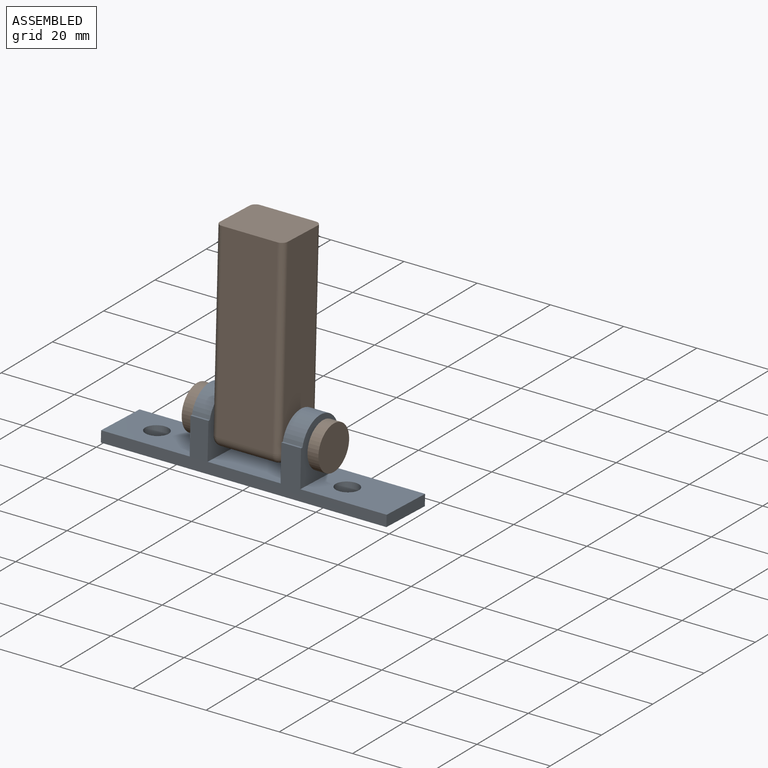
[diagram: assembled view]
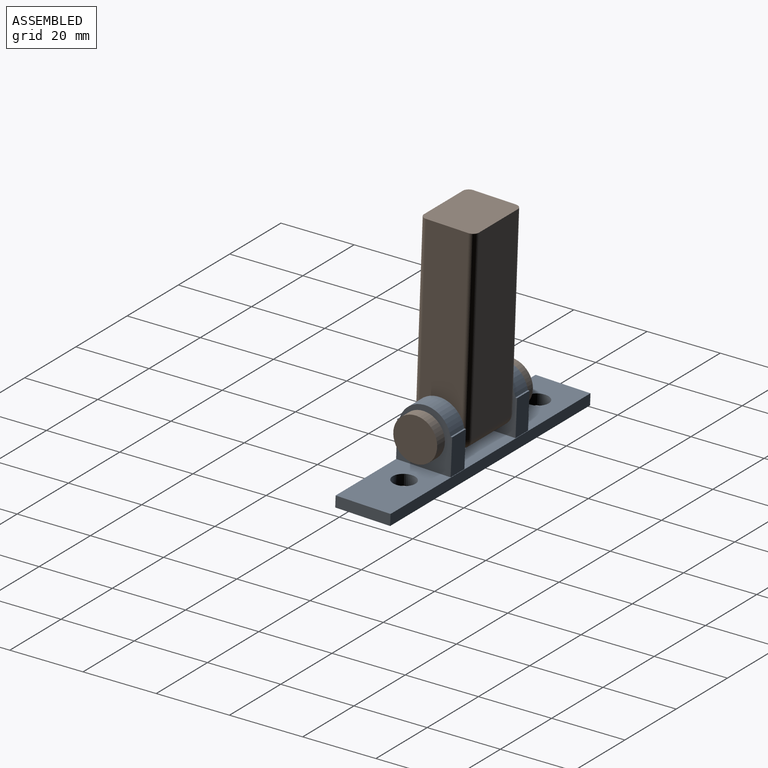
[diagram: assembled view, second angle]
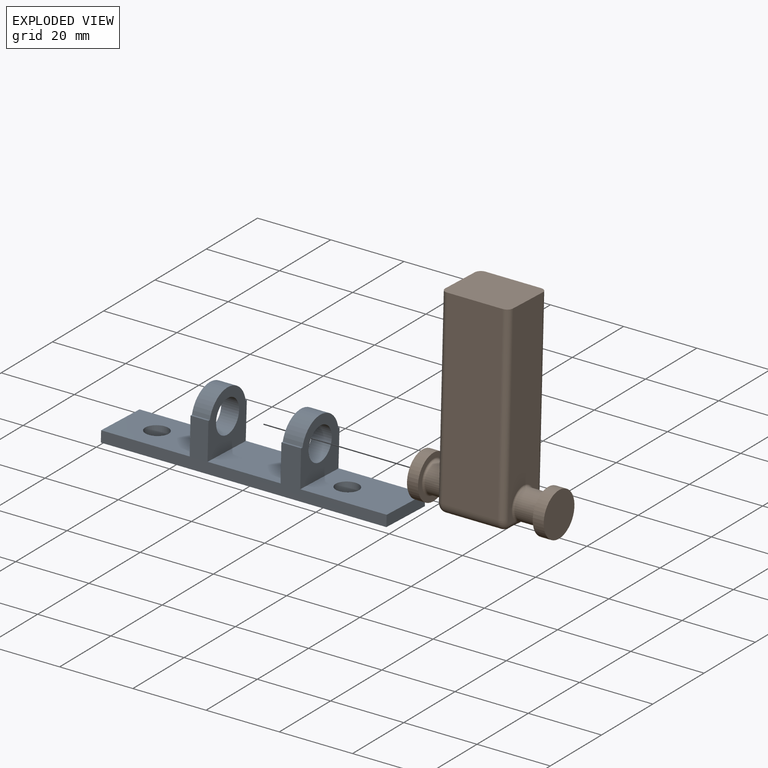
[diagram: exploded view]
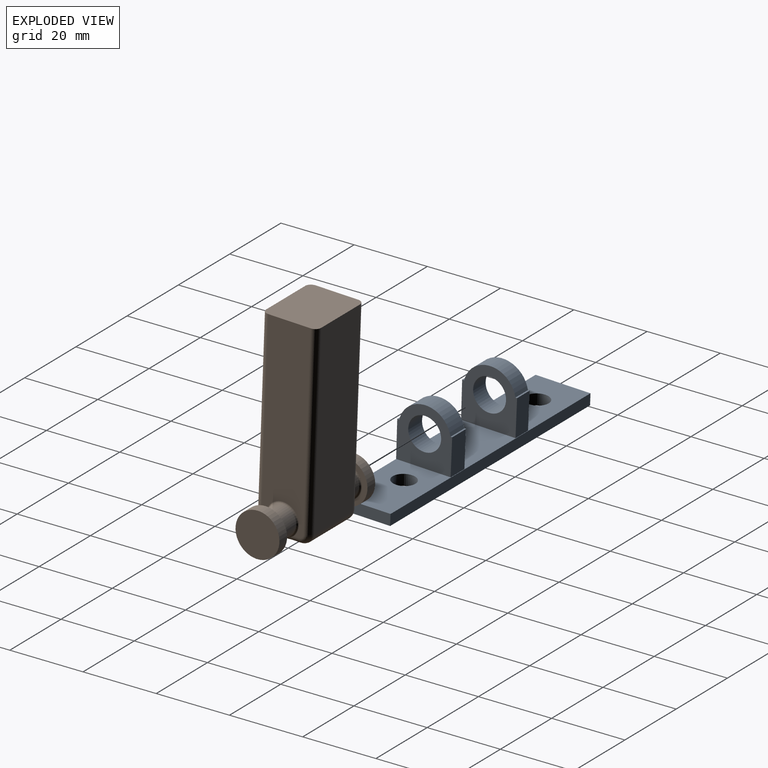
[diagram: exploded view, second angle]
ASSEMBLY  parts=2 mates=2
PART A: 24 faces, bbox 78x15.1x18.7 mm
  f0: cylinder r=7.15mm len=14.01mm, axis (-1,0,0), area 95.3mm2, adj f13,f14,f18,f22
  f1: cylinder r=4.5mm len=9mm, axis (-1,0,0), area 138mm2, adj f13,f14
  f2: plane 78x15.01mm, normal (0,0,1), area 956.8mm2, adj f3,f4,f5,f6,f7,f8,f12,f13
  f3: plane 78.02x3.02mm, normal (0,-1,0), area 234mm2, adj f2,f4,f8,f9,f17,f19
  f4: plane 15x3mm, normal (1,0,0), area 45mm2, adj f2,f3,f5,f9
  f5: plane 78x3mm, normal (0,1,0), area 234mm2, adj f2,f4,f8,f9
  f6: cylinder r=3.1mm len=6.2mm, axis (0,0,-1), area 58.4mm2, adj f2,f9
  f7: cylinder r=3.1mm len=6.2mm, axis (0,0,-1), area 58.4mm2, adj f2,f9
  f8: plane 15x3mm, normal (-1,0,0), area 45mm2, adj f2,f3,f5,f9
  f9: plane 78x15mm, normal (0,0,-1), area 1109.6mm2, adj f3,f4,f5,f6,f7,f8
  f10: cylinder r=7.15mm len=14.01mm, axis (-1,0,0), area 105.1mm2, adj f12,f15,f16,f20
  f11: cylinder r=4.5mm len=9mm, axis (-1,0,0), area 152.1mm2, adj f12,f15
  f12: plane 15.7x15.02mm, normal (1,0,0), area 145.6mm2, adj f2,f10,f11,f16,f17,f20,f21
  f13: plane 15.7x15.02mm, normal (-1,0,0), area 145.6mm2, adj f0,f1,f2,f18,f19,f22,f23
  f14: plane 15.7x15.02mm, normal (1,0,0), area 145.5mm2, adj f0,f1,f2,f18,f19,f22,f23
  f15: plane 15.7x15.02mm, normal (-1,0,0), area 145.5mm2, adj f2,f10,f11,f16,f17,f20,f21
  f16: plane 5.38x0.55mm, normal (0,-0.01,1), area 3mm2, adj f10,f12,f15,f17
  f17: plane 10.02x5.41mm, normal (0,-1,-0.01), area 53.8mm2, adj f3,f12,f15,f16
  f18: plane 4.88x0.55mm, normal (0,-0.01,1), area 2.7mm2, adj f0,f13,f14,f19
  f19: plane 10.02x4.9mm, normal (0,-1,-0.01), area 48.8mm2, adj f3,f13,f14,f18
  f20: plane 5.38x0.46mm, normal (0,0.01,1), area 2.5mm2, adj f10,f12,f15,f21
  f21: plane 10x5.38mm, normal (0,1,-0.01), area 53.8mm2, adj f2,f12,f15,f20
  f22: plane 4.88x0.46mm, normal (0,0.01,1), area 2.2mm2, adj f0,f13,f14,f23
  f23: plane 10x4.88mm, normal (0,1,-0.01), area 48.8mm2, adj f2,f13,f14,f22
PART B: 40 faces, bbox 37.3x15x55.5 mm
  f0: plane 51.5x15.16mm, normal (0,1,0), area 780.8mm2, adj f4,f15,f18,f25
  f1: plane 52.71x11.62mm, normal (-1,0,0), area 553.8mm2, adj f4,f16,f17,f18,f19,f20,f22,f31
  f2: plane 51.5x15.16mm, normal (0,-1,0), area 780.8mm2, adj f4,f14,f16,f23
  f3: plane 52.71x11.62mm, normal (1,0,0), area 554.1mm2, adj f4,f23,f24,f25,f26,f27,f29,f35
  f4: plane 18.54x15mm, normal (0,0,1), area 275.6mm2, adj f0,f1,f2,f3,f16,f18,f23,f25
  f5: plane 15.57x9.21mm, normal (0,0,-1), area 140.6mm2, adj f14,f15,f19,f21,f22,f26,f28,f29
  f6: cylinder r=4mm len=8mm, axis (-1,0,0), area 146.2mm2, adj f34,f35,f36,f37,f39
  f7: cylinder r=6mm len=12mm, axis (-1,0,0), area 113.1mm2, adj f8,f9
  f8: plane 12x12mm, normal (1,0,0), area 113.1mm2, adj f7
  f9: plane 12x12mm, normal (-1,0,0), area 49.5mm2, adj f7,f39
  f10: cylinder r=4mm len=8mm, axis (1,0,0), area 126.1mm2, adj f30,f31,f32,f33,f38
  f11: cylinder r=6mm len=12mm, axis (1,0,0), area 113.1mm2, adj f12,f13
  f12: plane 12x12mm, normal (-1,0,0), area 113.1mm2, adj f11
  f13: plane 12x12mm, normal (1,0,0), area 49.5mm2, adj f11,f38
  f14: cylinder r=2.9mm len=15.16mm, axis (1,0,0), area 69mm2, adj f2,f5,f17,f24
  f15: cylinder r=2.9mm len=15.16mm, axis (-1,0,0), area 69mm2, adj f0,f5,f20,f27
  f16: cylinder r=1.69mm len=51.5mm, axis (0,0,-1), area 136.7mm2, adj f1,f2,f4,f17
  f17: torus R=1.21mm, axis (1,0,0), area 9.5mm2, adj f1,f14,f16,f19
  f18: cylinder r=1.69mm len=51.5mm, axis (0,0,1), area 136.7mm2, adj f0,f1,f4,f20
  f19: cylinder r=1.69mm len=2.22mm, axis (0,-1,0), area 5.7mm2, adj f1,f5,f17,f21,f30
  f20: torus R=1.21mm, axis (1,0,0), area 9.5mm2, adj f1,f15,f18,f22
  f21: bspline ~6.12x2.11mm, area 8.3mm2, adj f5,f19,f22,f32
  f22: cylinder r=1.69mm len=2.22mm, axis (0,-1,0), area 5.7mm2, adj f1,f5,f20,f21,f33
  f23: cylinder r=1.69mm len=51.5mm, axis (0,0,1), area 136.7mm2, adj f2,f3,f4,f24
  f24: torus R=1.21mm, axis (1,0,0), area 9.5mm2, adj f3,f14,f23,f26
  f25: cylinder r=1.69mm len=51.5mm, axis (0,0,-1), area 136.7mm2, adj f0,f3,f4,f27
  f26: cylinder r=1.69mm len=2.16mm, axis (0,1,0), area 5.6mm2, adj f3,f5,f24,f28,f37
  f27: torus R=1.21mm, axis (1,0,0), area 9.5mm2, adj f3,f15,f25,f29
  f28: bspline ~5.89x1.99mm, area 8.3mm2, adj f5,f26,f29,f36
  f29: cylinder r=1.69mm len=2.16mm, axis (0,1,0), area 5.6mm2, adj f3,f5,f27,f28,f34
  f30: bspline ~2.24x1.56mm, area 0.6mm2, adj f10,f19,f31,f32
  f31: torus R=4.5mm, axis (1,0,0), area 15.5mm2, adj f1,f10,f30,f33
  f32: bspline ~5.09x0.95mm, area 2.5mm2, adj f10,f21,f30,f33
  f33: bspline ~1.62x1.32mm, area 0.6mm2, adj f10,f22,f31,f32
  f34: bspline ~1.93x1.27mm, area 0.6mm2, adj f6,f29,f35,f36
  f35: torus R=4.5mm, axis (1,0,0), area 15.5mm2, adj f3,f6,f34,f37
  f36: bspline ~5.18x0.98mm, area 2.5mm2, adj f6,f28,f34,f37
  f37: bspline ~1.6x1.32mm, area 0.6mm2, adj f6,f26,f35,f36
  f38: torus R=4.5mm, axis (-1,0,0), area 20.6mm2, adj f10,f13
  f39: torus R=4.5mm, axis (1,0,0), area 20.6mm2, adj f6,f9
PLACE A rot(axis=(-1,0,0),2.2deg) t=(-38.98,-13.61,-18)mm
PLACE B rot(axis=(-1,0,0),2.2deg) t=(-38.91,-13.53,-15.32)mm
MATE cylindrical B.f6 <-> A.f0  axis (-1,0,0) through (-26.43,-13.2,-6.47)mm
MATE parallel B.f0 <-> A.f5  axis (0,1,-0.04) through (-38.96,-4.81,17.02)mm
